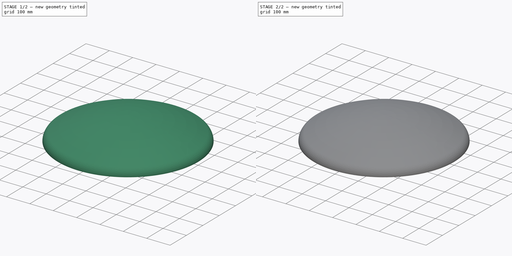
[diagram: build sequence overview — one tinted view per stage of 2, left to right]
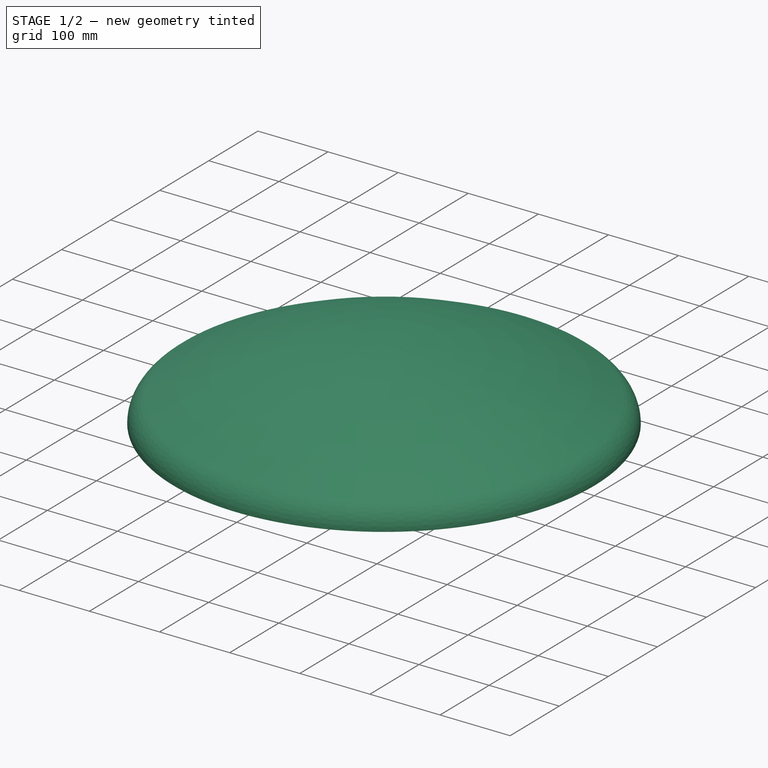
[diagram: stage 1 of 2 — iso view after this stage's code; geometry added in this stage tinted green]
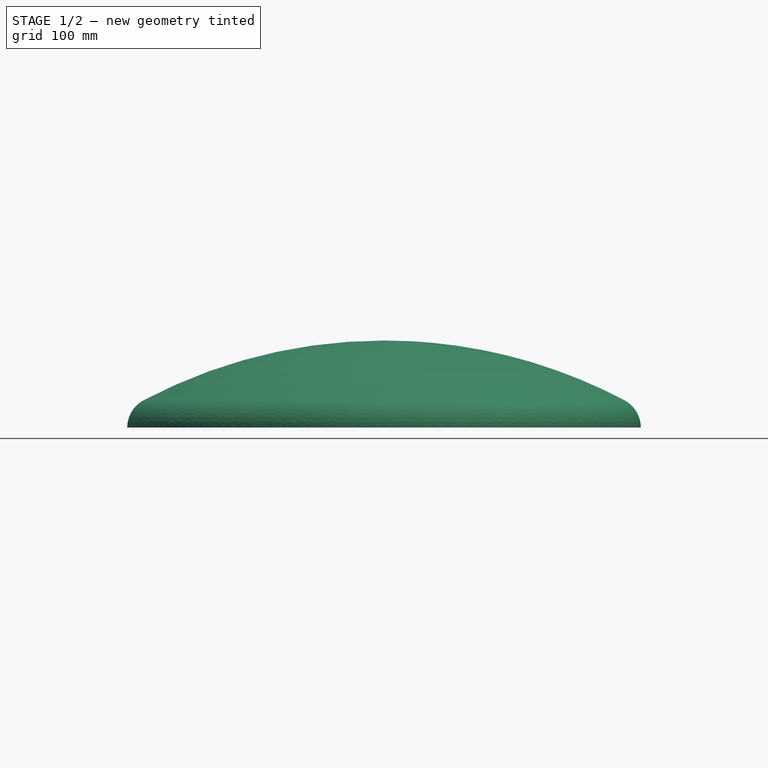
[diagram: stage 1 of 2 — front view after this stage's code; geometry added in this stage tinted green]
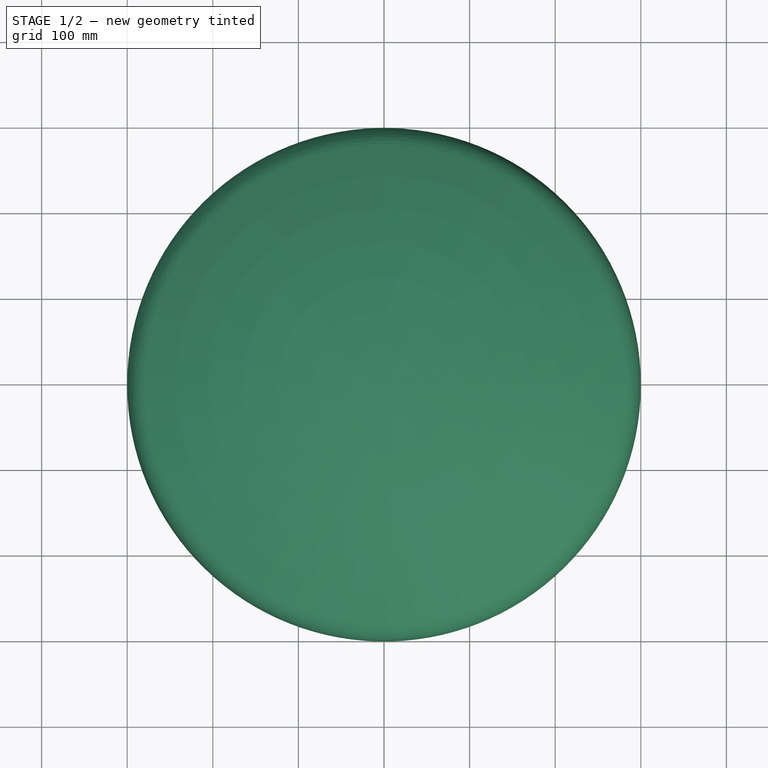
[diagram: stage 1 of 2 — top view after this stage's code; geometry added in this stage tinted green]
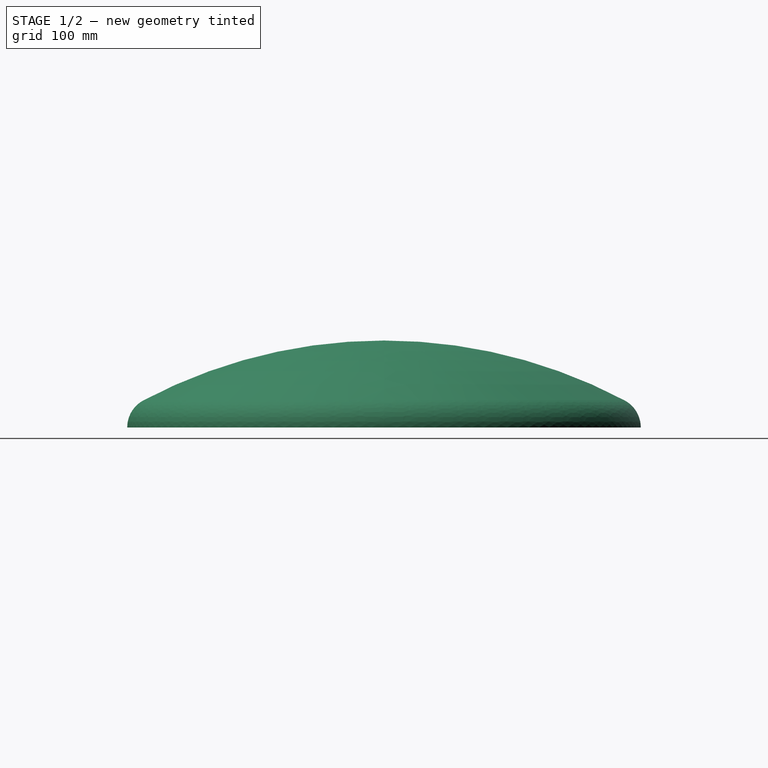
[diagram: stage 1 of 2 — right view after this stage's code; geometry added in this stage tinted green]
FCSTD DOCUMENT  (FreeCAD 0.20R29177 (Git))
Label: Torisphere - Copy (2)
License: All rights reserved
LicenseURL: http://en.wikipedia.org/wiki/All_rights_reserved
objects: Sketcher::SketchObject×3, PartDesign::Revolution×3, PartDesign::Body×3, Spreadsheet::Sheet×1, Part::Cut×1
note: 13 computed .brp shape members not serialized (recipe doc carries the construction recipe); baked Part::Feature solids carry a one-line shape summary decoded from their .brp

FEATURE [PartDesign::Body] Body001  label="InnerShell"
  Group = -> [Sketch001,Revolution]
  Origin = -> Origin001
  Tip = -> Revolution
FEATURE [PartDesign::Revolution] Revolution001
  Angle = 360
  Axis = (1e-16,-1e-16,-1)
  Base = (0,0,0)
  Placement = pos=(0,0,0) rot=(0.57735,0.57735,0.57735;2.0944rad)
  Profile = -> Sketch
  ReferenceAxis = -> Sketch [H_Axis]
FEATURE [Sketcher::SketchObject] Sketch002
  FullyConstrained = true
  MapMode = 4
  Placement = pos=(0,0,0) rot=(0.57735,0.57735,-0.57735;2.0944rad)
  Support = -> [YZ_Plane002]
  expr: .Constraints.R = <<Parameters>>.R
  expr: .Constraints.a = <<Parameters>>.a
  expr: .Constraints.c = <<Parameters>>.c
  expr: .Constraints.ht = <<Parameters>>.ht
  sketch-geometry (5):
    g0: LineSegment StartX=0 StartY=7.35e-14 StartZ=0 EndX=-101.603 EndY=7.35e-14 EndZ=0
    g1: LineSegment StartX=0 StartY=7.35e-14 StartZ=0 EndX=0 EndY=264 EndZ=0
    g2: LineSegment StartX=0 StartY=264 StartZ=0 EndX=2.2e-15 EndY=300 EndZ=0
    g3: ArcOfCircle CenterX=0 CenterY=264 CenterZ=0 NormalX=0 NormalY=0 NormalZ=1 AngleXU=0 Radius=36 StartAngle=1.5708 EndAngle=2.65447
    g4: ArcOfCircle CenterX=498.397 CenterY=0 CenterZ=0 NormalX=0 NormalY=0 NormalZ=1 AngleXU=0 Radius=600 StartAngle=2.65447 EndAngle=3.14159
  constraints (15):
    c: Coincident(g0,g-1)
    c: Horizontal(g0)
    c: Coincident(g1,g0)
    c: PointOnObject(g1,g-2)
    c: DistanceX(g0,g0) = 101.603  'ht'
    c: DistanceY(g1,g1) = 264  'c'
    c: Coincident(g2,g1)
    c: PointOnObject(g2,g-2)
    c: DistanceY(g2,g2) = 36  'a'
    c: Coincident(g3,g1)
    c: PointOnObject(g4,g-1)
    c: Radius(g4) = 600  'R'
    c: Coincident(g4,g0)
    c: Coincident(g3,g2)
    c: Coincident(g4,g3)
FEATURE [PartDesign::Revolution] Revolution002
  Angle = 360
  Axis = (1e-16,-1e-16,-1)
  Base = (0,0,0)
  Placement = pos=(0,0,0) rot=(0.57735,0.57735,0.57735;2.0944rad)
  Profile = -> Sketch002
  ReferenceAxis = -> Sketch002 [H_Axis]
FEATURE [PartDesign::Body] Body002  label="DisplacedModel"
  Group = -> [Sketch002,Revolution002]
  Origin = -> Origin002
  Tip = -> Revolution002
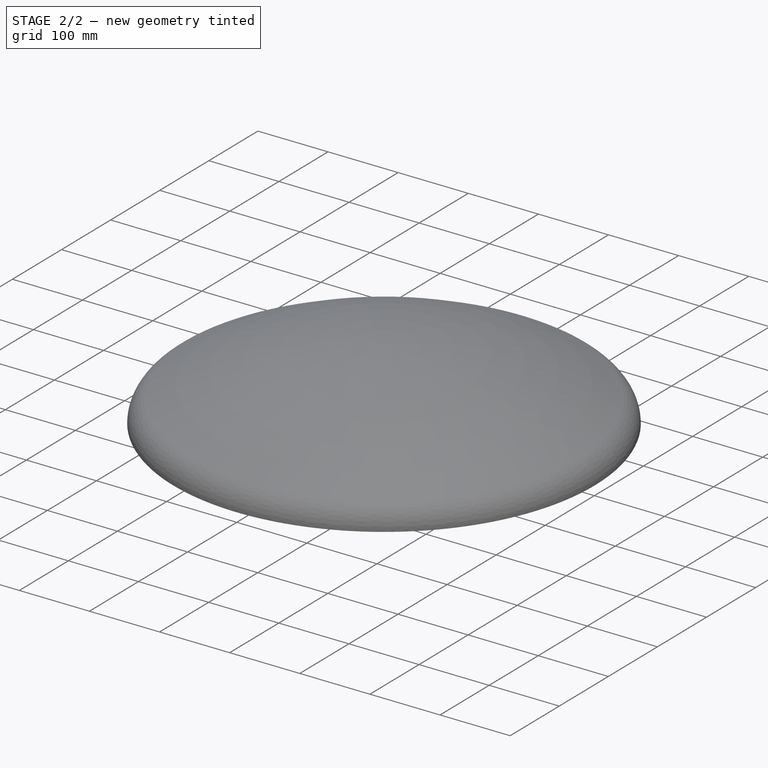
[diagram: stage 2 of 2 — iso view after this stage's code; geometry added in this stage tinted green]
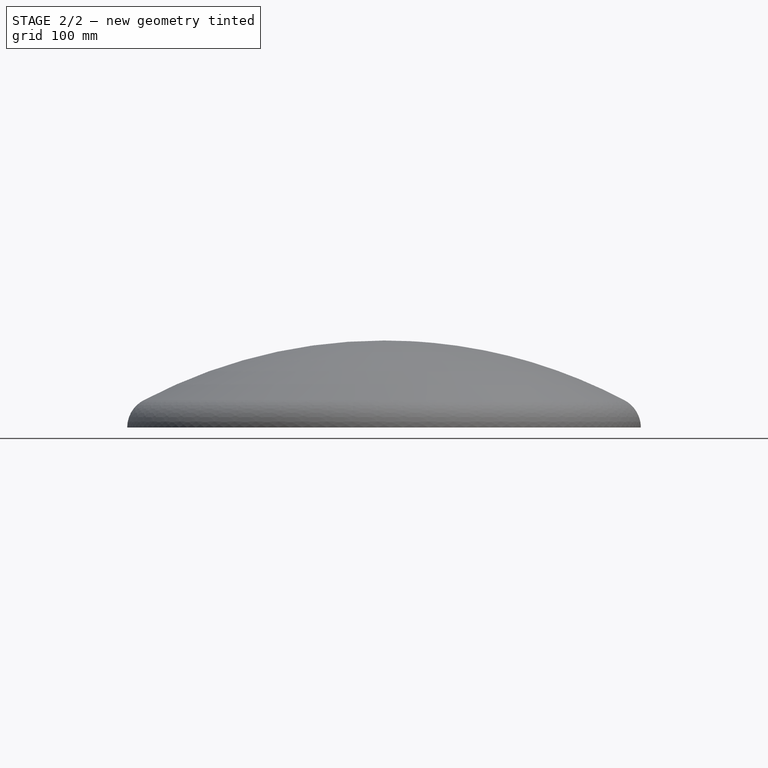
[diagram: stage 2 of 2 — front view after this stage's code; geometry added in this stage tinted green]
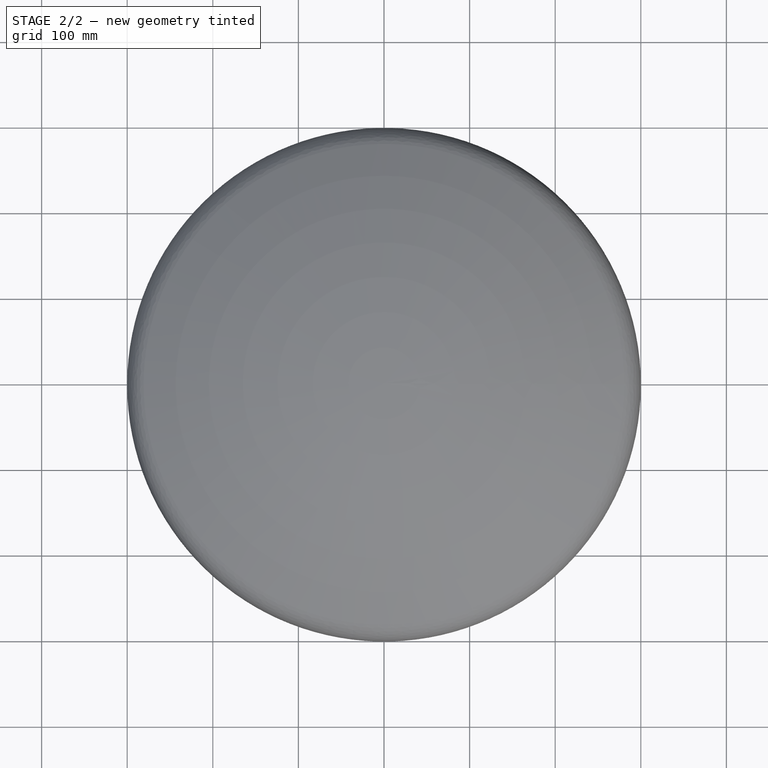
[diagram: stage 2 of 2 — top view after this stage's code; geometry added in this stage tinted green]
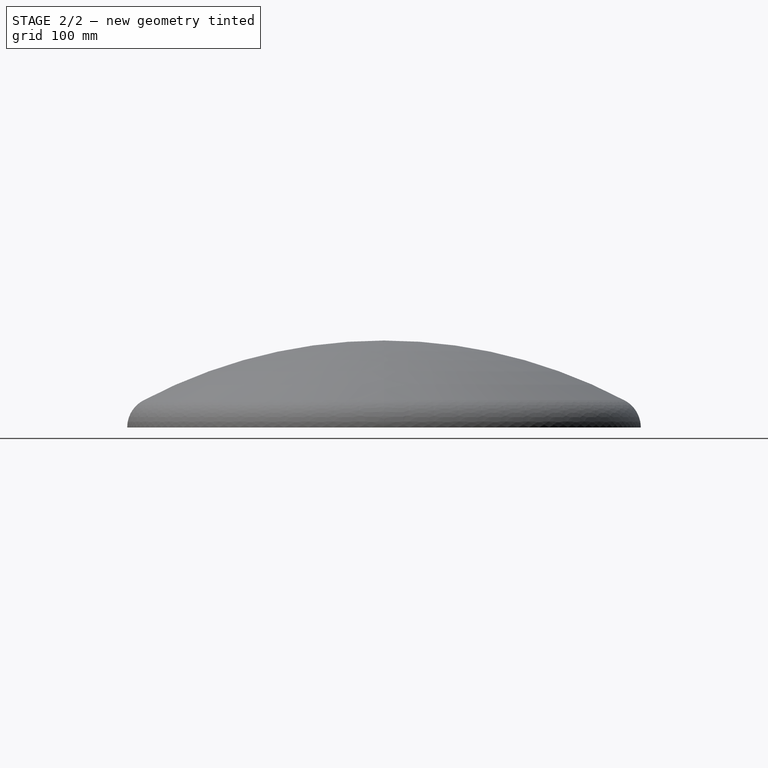
[diagram: stage 2 of 2 — right view after this stage's code; geometry added in this stage tinted green]
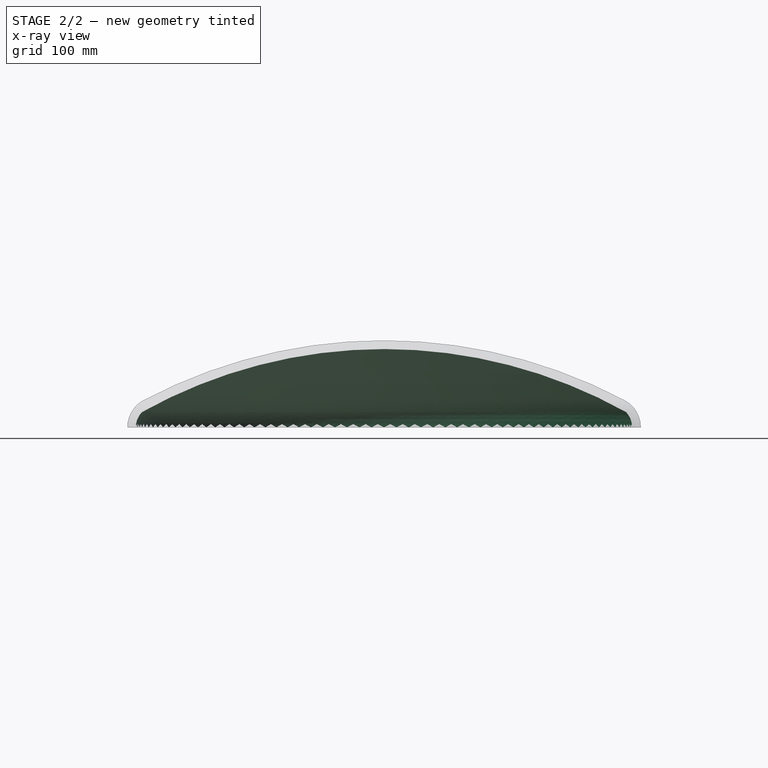
[diagram: stage 2 of 2 — x-ray composite at the right view; earlier geometry ghosted, this stage's added geometry solid]
FEATURE [Spreadsheet::Sheet] Spreadsheet  label="Parameters"
  cells = A1=Base Radius; B1(base_radius)==0.3m; A2=Crown Ratio; B2(crown_ratio)=1; A3=Knuckle Ratio; B3(knuckle_ratio)=0.06; A4=Thickness; B4(thickness)==0.01m; A6=Derived; A7=R; B7(R)==2 * B1 * B2; A8=a; B8(a)==2 * B1 * B3; A9=c; B9(c)==B1 - B8; A10=h; B10(ht)==B7 - sqrt((B8 + B9 - B7) * (B8 - B9 - B7)); A12=Inner R; B12(R_inner)==2 * (B1 - B4) * B2; A13=Inner a; B13(a_inner)==B8 - B4; A14=Inner c; B14(c_inner)==B9; A15=Inner h; B15(h_inner)==B10 - B4
FEATURE [Sketcher::SketchObject] Sketch  label="OuterShellSketch"
  FullyConstrained = true
  MapMode = 4
  Placement = pos=(0,0,0) rot=(0.57735,0.57735,-0.57735;2.0944rad)
  Support = -> [YZ_Plane]
  expr: .Constraints.R = <<Parameters>>.R
  expr: .Constraints.a = <<Parameters>>.a
  expr: .Constraints.c = <<Parameters>>.c
  expr: .Constraints.ht = <<Parameters>>.ht
  sketch-geometry (5):
    g0: LineSegment StartX=0 StartY=7.35e-14 StartZ=0 EndX=-101.603 EndY=7.35e-14 EndZ=0
    g1: LineSegment StartX=0 StartY=7.35e-14 StartZ=0 EndX=0 EndY=264 EndZ=0
    g2: LineSegment StartX=0 StartY=264 StartZ=0 EndX=2.2e-15 EndY=300 EndZ=0
    g3: ArcOfCircle CenterX=0 CenterY=264 CenterZ=0 NormalX=0 NormalY=0 NormalZ=1 AngleXU=0 Radius=36 StartAngle=1.5708 EndAngle=2.65447
    g4: ArcOfCircle CenterX=498.397 CenterY=0 CenterZ=0 NormalX=0 NormalY=0 NormalZ=1 AngleXU=0 Radius=600 StartAngle=2.65447 EndAngle=3.14159
  constraints (15):
    c: Coincident(g0,g-1)
    c: Horizontal(g0)
    c: Coincident(g1,g0)
    c: PointOnObject(g1,g-2)
    c: DistanceX(g0,g0) = 101.603  'ht'
    c: DistanceY(g1,g1) = 264  'c'
    c: Coincident(g2,g1)
    c: PointOnObject(g2,g-2)
    c: DistanceY(g2,g2) = 36  'a'
    c: Coincident(g3,g1)
    c: PointOnObject(g4,g-1)
    c: Radius(g4) = 600  'R'
    c: Coincident(g4,g0)
    c: Coincident(g3,g2)
    c: Coincident(g4,g3)
FEATURE [Sketcher::SketchObject] Sketch001  label="InnerShellSketch"
  FullyConstrained = true
  MapMode = 4
  Placement = pos=(0,0,0) rot=(0.57735,0.57735,-0.57735;2.0944rad)
  Support = -> [YZ_Plane001]
  expr: .Constraints.R_inner = <<Parameters>>.R_inner
  expr: .Constraints.a_inner = <<Parameters>>.a_inner
  expr: .Constraints.c_inner = <<Parameters>>.c_inner
  expr: .Constraints.ht_inner = <<Parameters>>.h_inner
  sketch-geometry (5):
    g0: LineSegment StartX=4.8e-15 StartY=7.1e-14 StartZ=0 EndX=4.8e-15 EndY=264 EndZ=0
    g1: LineSegment StartX=4.8e-15 StartY=264 StartZ=0 EndX=4.8e-15 EndY=290 EndZ=0
    g2: LineSegment StartX=4.8e-15 StartY=7.1e-14 StartZ=0 EndX=-91.6026 EndY=7.1e-14 EndZ=0
    g3: ArcOfCircle CenterX=4.8e-15 CenterY=264 CenterZ=0 NormalX=0 NormalY=0 NormalZ=1 AngleXU=0 Radius=26 StartAngle=1.5708 EndAngle=2.33633
    g4: ArcOfCircle CenterX=488.397 CenterY=0 CenterZ=0 NormalX=0 NormalY=0 NormalZ=1 AngleXU=0 Radius=580 StartAngle=2.63238 EndAngle=3.14159
  constraints (15):
    c: Coincident(g0,g-1)
    c: Vertical(g0)
    c: Coincident(g1,g0)
    c: Vertical(g1)
    c: Coincident(g2,g0)
    c: Horizontal(g2)
    c: Coincident(g3,g0)
    c: PointOnObject(g4,g-1)
    c: DistanceX(g2,g2) = 91.6026  'ht_inner'
    c: DistanceY(g1,g1) = 26  'a_inner'
    c: DistanceY(g0,g0) = 264  'c_inner'
    c: Radius(g4) = 580  'R_inner'
    c: Coincident(g4,g2)
    c: Coincident(g3,g1)
    c: Coincident(g4,g3)
FEATURE [PartDesign::Revolution] Revolution
  Angle = 360
  Axis = (1e-16,-1e-16,-1)
  Base = (0,0,0)
  Placement = pos=(0,0,0) rot=(0.57735,0.57735,0.57735;2.0944rad)
  Profile = -> Sketch001
  ReferenceAxis = -> Sketch001 [H_Axis]
FEATURE [PartDesign::Body] Body  label="OuterShell"
  Group = -> [Sketch,Revolution001]
  Origin = -> Origin
  Tip = -> Revolution001
FEATURE [Part::Cut] Cut  label="Model"
  Base = -> Body
  Tool = -> Body001
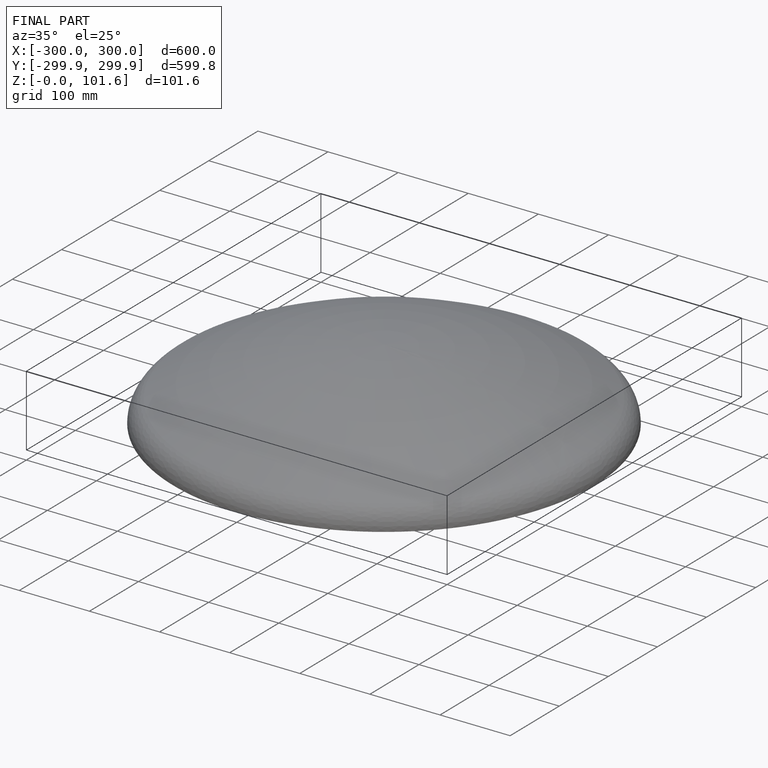
[diagram: finished part — iso view with bounding-box wireframe]
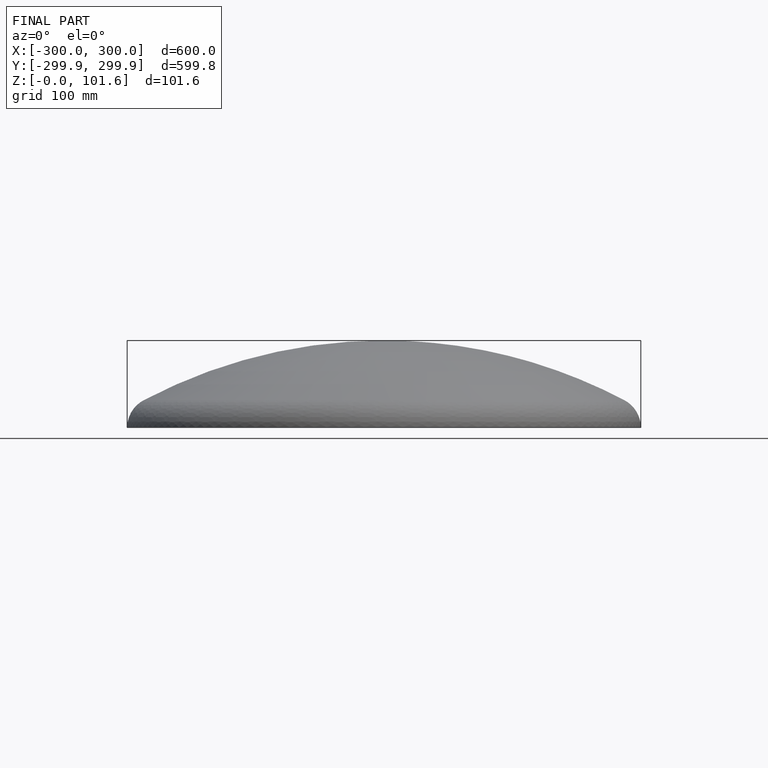
[diagram: finished part — front view with bounding-box wireframe]
